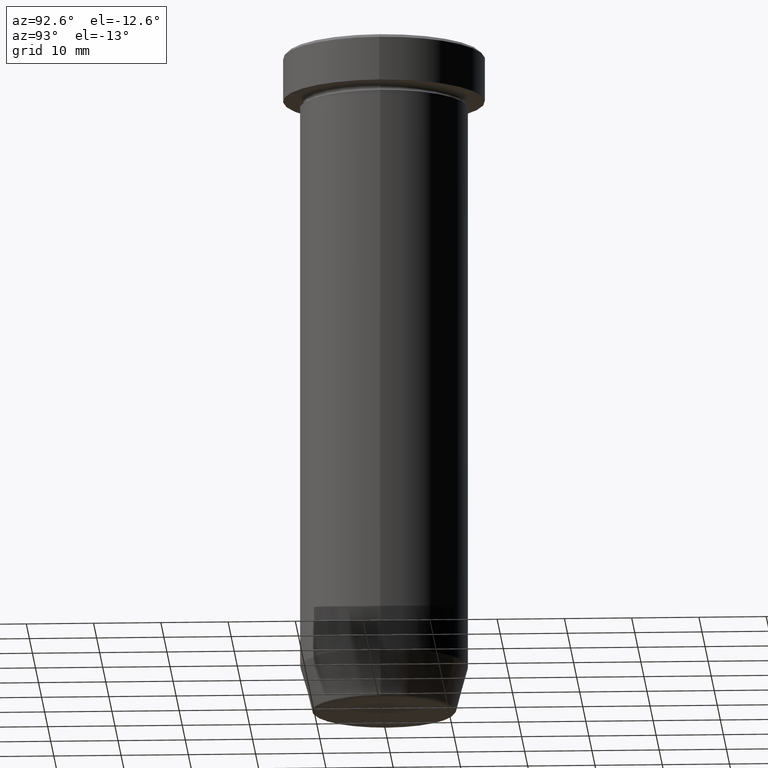
[diagram: clean part render]
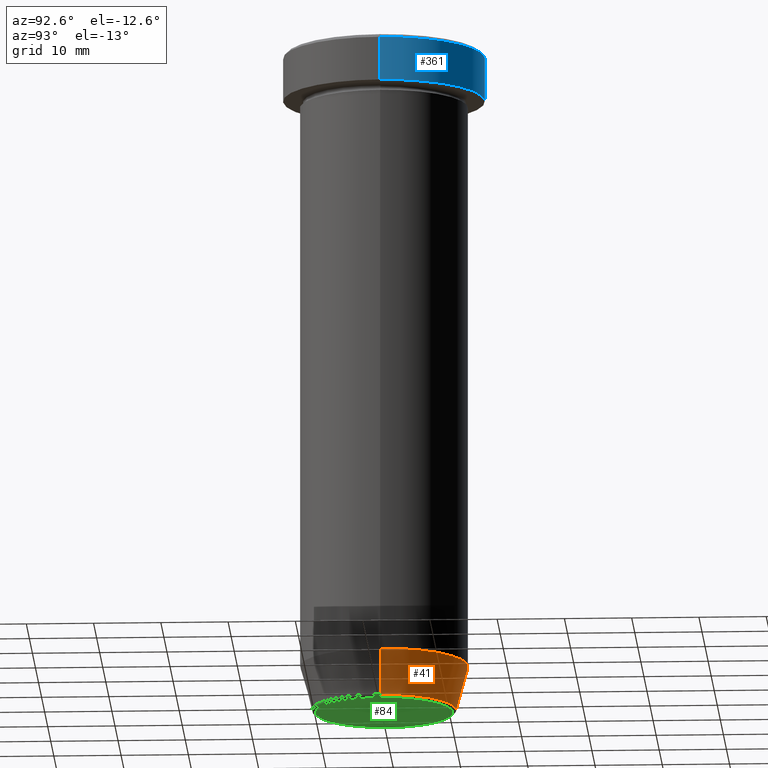
[diagram: same view with three faces highlighted in distinct colors, each labeled with its STEP entity id]
A machine part, auxiliary view with three faces highlighted in distinct colors.
Their STEP definitions:

[orange] entity #41 — the highlighted conical surface has half-angle 15 deg.
#3 = CARTESIAN_POINT ( 'NONE',  ( -12.50000000000000000, 1.530808498934191521E-15, -93.00000000000000000 ) ) ;
#26 = EDGE_LOOP ( 'NONE', ( #420, #104, #278, #293 ) ) ;
#32 = EDGE_CURVE ( 'NONE', #153, #284, #87, .T. ) ;
#41 = ADVANCED_FACE ( 'NONE', ( #49 ), #399, .T. ) ;
#49 = FACE_OUTER_BOUND ( 'NONE', #26, .T. ) ;
#52 = DIRECTION ( 'NONE',  ( -0.000000000000000000, -0.000000000000000000, 1.000000000000000000 ) ) ;
#87 = CIRCLE ( 'NONE', #193, 10.72365507213719482 ) ;
#104 = ORIENTED_EDGE ( 'NONE', *, *, #216, .T. ) ;
#122 = CARTESIAN_POINT ( 'NONE',  ( 10.72365507213719305, 0.000000000000000000, -99.62940952255128479 ) ) ;
#129 = CARTESIAN_POINT ( 'NONE',  ( 10.62435565298213902, 0.000000000000000000, -100.0000000000000000 ) ) ;
#133 = DIRECTION ( 'NONE',  ( 0.2588190451025209060, 0.000000000000000000, 0.9659258262890682012 ) ) ;
#136 = CARTESIAN_POINT ( 'NONE',  ( -10.62435565298213902, 1.301108314342766318E-15, -100.0000000000000000 ) ) ;
#153 = VERTEX_POINT ( 'NONE', #122 ) ;
#169 = CIRCLE ( 'NONE', #514, 12.50000000000000000 ) ;
#193 = AXIS2_PLACEMENT_3D ( 'NONE', #287, #489, #432 ) ;
#216 = EDGE_CURVE ( 'NONE', #284, #320, #453, .T. ) ;
#240 = VECTOR ( 'NONE', #422, 1000.000000000000000 ) ;
#244 = DIRECTION ( 'NONE',  ( -0.000000000000000000, -0.000000000000000000, 1.000000000000000000 ) ) ;
#257 = CARTESIAN_POINT ( 'NONE',  ( 12.50000000000000000, 0.000000000000000000, -93.00000000000000000 ) ) ;
#272 = EDGE_CURVE ( 'NONE', #153, #526, #466, .T. ) ;
#273 = CARTESIAN_POINT ( 'NONE',  ( -10.72365507213719305, 1.422038742429750516E-15, -99.62940952255128479 ) ) ;
#278 = ORIENTED_EDGE ( 'NONE', *, *, #328, .F. ) ;
#284 = VERTEX_POINT ( 'NONE', #273 ) ;
#287 = CARTESIAN_POINT ( 'NONE',  ( 0.000000000000000000, 0.000000000000000000, -99.62940952255128479 ) ) ;
#293 = ORIENTED_EDGE ( 'NONE', *, *, #272, .F. ) ;
#320 = VERTEX_POINT ( 'NONE', #3 ) ;
#328 = EDGE_CURVE ( 'NONE', #526, #320, #169, .T. ) ;
#346 = CARTESIAN_POINT ( 'NONE',  ( 0.000000000000000000, 0.000000000000000000, -100.0000000000000000 ) ) ;
#399 = CONICAL_SURFACE ( 'NONE', #496, 10.62435565298213902, 0.2617993877991495744 ) ;
#420 = ORIENTED_EDGE ( 'NONE', *, *, #32, .T. ) ;
#422 = DIRECTION ( 'NONE',  ( -0.2588190451025209060, 3.169619151431766790E-17, 0.9659258262890682012 ) ) ;
#430 = VECTOR ( 'NONE', #133, 1000.000000000000000 ) ;
#432 = DIRECTION ( 'NONE',  ( -1.000000000000000000, 0.000000000000000000, 0.000000000000000000 ) ) ;
#453 = LINE ( 'NONE', #136, #240 ) ;
#466 = LINE ( 'NONE', #129, #430 ) ;
#482 = DIRECTION ( 'NONE',  ( 1.000000000000000000, 0.000000000000000000, 0.000000000000000000 ) ) ;
#489 = DIRECTION ( 'NONE',  ( -0.000000000000000000, -0.000000000000000000, 1.000000000000000000 ) ) ;
#496 = AXIS2_PLACEMENT_3D ( 'NONE', #346, #244, #528 ) ;
#514 = AXIS2_PLACEMENT_3D ( 'NONE', #520, #52, #482 ) ;
#520 = CARTESIAN_POINT ( 'NONE',  ( 0.000000000000000000, 0.000000000000000000, -93.00000000000000000 ) ) ;
#526 = VERTEX_POINT ( 'NONE', #257 ) ;
#528 = DIRECTION ( 'NONE',  ( 1.000000000000000000, 0.000000000000000000, 0.000000000000000000 ) ) ;

[blue] entity #361 — the highlighted cylindrical surface (partial cylindrical patch) has radius 15 mm, axis along (-0, -0, 1).
#17 = DIRECTION ( 'NONE',  ( -0.000000000000000000, -0.000000000000000000, 1.000000000000000000 ) ) ;
#21 = EDGE_CURVE ( 'NONE', #436, #208, #75, .T. ) ;
#43 = DIRECTION ( 'NONE',  ( 0.000000000000000000, 0.000000000000000000, -1.000000000000000000 ) ) ;
#45 = VECTOR ( 'NONE', #429, 1000.000000000000000 ) ;
#60 = VERTEX_POINT ( 'NONE', #412 ) ;
#70 = AXIS2_PLACEMENT_3D ( 'NONE', #460, #554, #135 ) ;
#75 = CIRCLE ( 'NONE', #283, 15.00000000000000000 ) ;
#85 = CARTESIAN_POINT ( 'NONE',  ( -15.00000000000000000, 1.836970198721029589E-15, -6.999999999999999112 ) ) ;
#98 = LINE ( 'NONE', #154, #45 ) ;
#103 = CARTESIAN_POINT ( 'NONE',  ( 0.000000000000000000, 0.000000000000000000, 0.000000000000000000 ) ) ;
#110 = CYLINDRICAL_SURFACE ( 'NONE', #301, 15.00000000000000000 ) ;
#119 = DIRECTION ( 'NONE',  ( -0.000000000000000000, -0.000000000000000000, 1.000000000000000000 ) ) ;
#135 = DIRECTION ( 'NONE',  ( 1.000000000000000000, 0.000000000000000000, 0.000000000000000000 ) ) ;
#154 = CARTESIAN_POINT ( 'NONE',  ( -15.00000000000000000, 1.836970198721029589E-15, 0.000000000000000000 ) ) ;
#172 = ORIENTED_EDGE ( 'NONE', *, *, #319, .T. ) ;
#189 = ORIENTED_EDGE ( 'NONE', *, *, #455, .F. ) ;
#191 = FACE_OUTER_BOUND ( 'NONE', #384, .T. ) ;
#208 = VERTEX_POINT ( 'NONE', #410 ) ;
#239 = DIRECTION ( 'NONE',  ( 1.000000000000000000, 0.000000000000000000, 0.000000000000000000 ) ) ;
#264 = CARTESIAN_POINT ( 'NONE',  ( 15.00000000000000000, 0.000000000000000000, 0.000000000000000000 ) ) ;
#274 = VERTEX_POINT ( 'NONE', #85 ) ;
#283 = AXIS2_PLACEMENT_3D ( 'NONE', #571, #43, #239 ) ;
#301 = AXIS2_PLACEMENT_3D ( 'NONE', #103, #17, #575 ) ;
#306 = LINE ( 'NONE', #264, #570 ) ;
#319 = EDGE_CURVE ( 'NONE', #274, #436, #98, .T. ) ;
#361 = ADVANCED_FACE ( 'NONE', ( #191 ), #110, .T. ) ;
#384 = EDGE_LOOP ( 'NONE', ( #467, #172, #403, #189 ) ) ;
#403 = ORIENTED_EDGE ( 'NONE', *, *, #21, .T. ) ;
#410 = CARTESIAN_POINT ( 'NONE',  ( 15.00000000000000000, 0.000000000000000000, -0.5000000000000038858 ) ) ;
#412 = CARTESIAN_POINT ( 'NONE',  ( 15.00000000000000000, 0.000000000000000000, -6.999999999999999112 ) ) ;
#429 = DIRECTION ( 'NONE',  ( -0.000000000000000000, -0.000000000000000000, 1.000000000000000000 ) ) ;
#436 = VERTEX_POINT ( 'NONE', #448 ) ;
#448 = CARTESIAN_POINT ( 'NONE',  ( -15.00000000000000000, 1.836970198721029589E-15, -0.5000000000000038858 ) ) ;
#455 = EDGE_CURVE ( 'NONE', #60, #208, #306, .T. ) ;
#460 = CARTESIAN_POINT ( 'NONE',  ( 0.000000000000000000, 0.000000000000000000, -6.999999999999999112 ) ) ;
#467 = ORIENTED_EDGE ( 'NONE', *, *, #578, .T. ) ;
#550 = CIRCLE ( 'NONE', #70, 15.00000000000000000 ) ;
#554 = DIRECTION ( 'NONE',  ( -0.000000000000000000, -0.000000000000000000, 1.000000000000000000 ) ) ;
#570 = VECTOR ( 'NONE', #119, 1000.000000000000000 ) ;
#571 = CARTESIAN_POINT ( 'NONE',  ( 0.000000000000000000, 0.000000000000000000, -0.5000000000000038858 ) ) ;
#575 = DIRECTION ( 'NONE',  ( 1.000000000000000000, 0.000000000000000000, 0.000000000000000000 ) ) ;
#578 = EDGE_CURVE ( 'NONE', #60, #274, #550, .T. ) ;

[green] entity #84 — the highlighted planar face has unit normal (0, -0, 1).
#15 = VERTEX_POINT ( 'NONE', #519 ) ;
#63 = PLANE ( 'NONE',  #194 ) ;
#84 = ADVANCED_FACE ( 'NONE', ( #492 ), #63, .F. ) ;
#88 = EDGE_LOOP ( 'NONE', ( #231, #485 ) ) ;
#194 = AXIS2_PLACEMENT_3D ( 'NONE', #262, #222, #219 ) ;
#219 = DIRECTION ( 'NONE',  ( 1.000000000000000000, 0.000000000000000000, 0.000000000000000000 ) ) ;
#222 = DIRECTION ( 'NONE',  ( 0.000000000000000000, -0.000000000000000000, 1.000000000000000000 ) ) ;
#227 = EDGE_CURVE ( 'NONE', #340, #15, #251, .T. ) ;
#231 = ORIENTED_EDGE ( 'NONE', *, *, #227, .T. ) ;
#243 = CARTESIAN_POINT ( 'NONE',  ( 10.24069215899266005, 0.000000000000000000, -100.0000000000000000 ) ) ;
#251 = CIRCLE ( 'NONE', #413, 10.24069215899266005 ) ;
#262 = CARTESIAN_POINT ( 'NONE',  ( 0.000000000000000000, 6.123233995736766085E-15, -100.0000000000000000 ) ) ;
#276 = AXIS2_PLACEMENT_3D ( 'NONE', #416, #419, #548 ) ;
#277 = EDGE_CURVE ( 'NONE', #15, #340, #544, .T. ) ;
#280 = CARTESIAN_POINT ( 'NONE',  ( 0.000000000000000000, 0.000000000000000000, -100.0000000000000000 ) ) ;
#340 = VERTEX_POINT ( 'NONE', #243 ) ;
#413 = AXIS2_PLACEMENT_3D ( 'NONE', #280, #552, #507 ) ;
#416 = CARTESIAN_POINT ( 'NONE',  ( 0.000000000000000000, 0.000000000000000000, -100.0000000000000000 ) ) ;
#419 = DIRECTION ( 'NONE',  ( 0.000000000000000000, 0.000000000000000000, -1.000000000000000000 ) ) ;
#485 = ORIENTED_EDGE ( 'NONE', *, *, #277, .T. ) ;
#492 = FACE_OUTER_BOUND ( 'NONE', #88, .T. ) ;
#507 = DIRECTION ( 'NONE',  ( 1.000000000000000000, 0.000000000000000000, 0.000000000000000000 ) ) ;
#519 = CARTESIAN_POINT ( 'NONE',  ( -10.24069215899266005, 1.283696036640842376E-15, -100.0000000000000000 ) ) ;
#544 = CIRCLE ( 'NONE', #276, 10.24069215899266005 ) ;
#548 = DIRECTION ( 'NONE',  ( 1.000000000000000000, 0.000000000000000000, 0.000000000000000000 ) ) ;
#552 = DIRECTION ( 'NONE',  ( 0.000000000000000000, 0.000000000000000000, -1.000000000000000000 ) ) ;